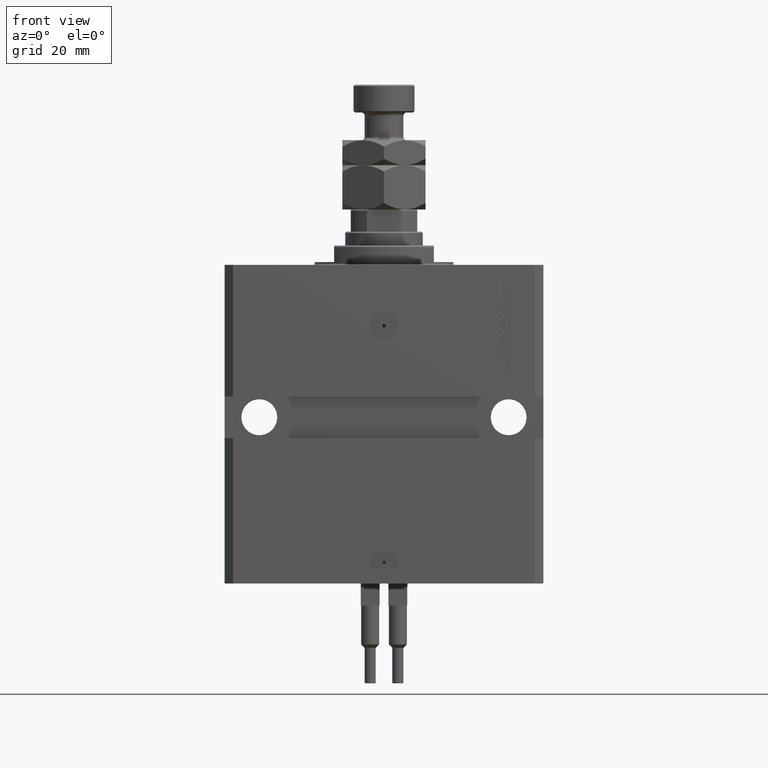
[diagram: clean part render]
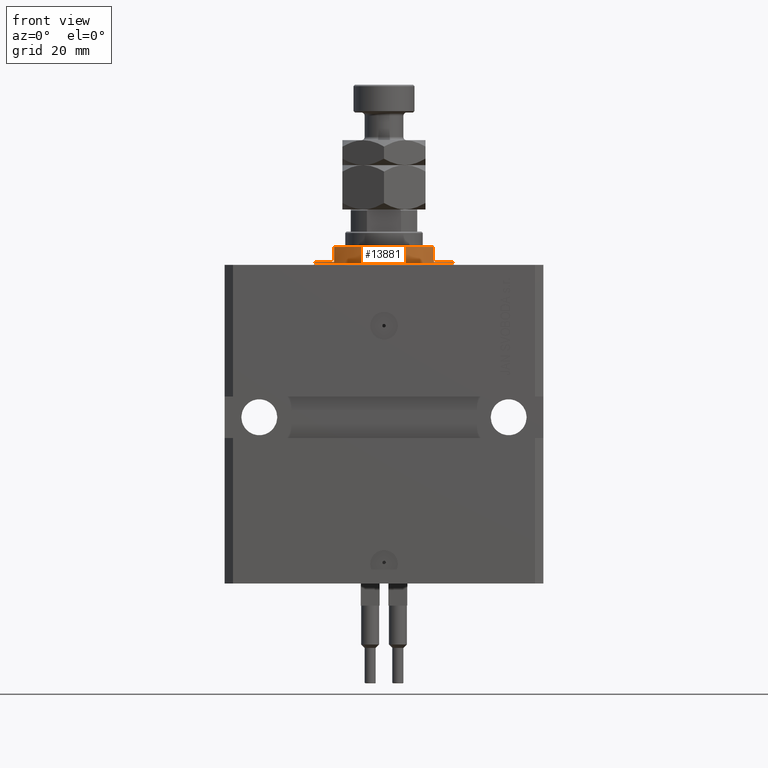
[diagram: same view with one face highlighted and labeled with its STEP entity id]
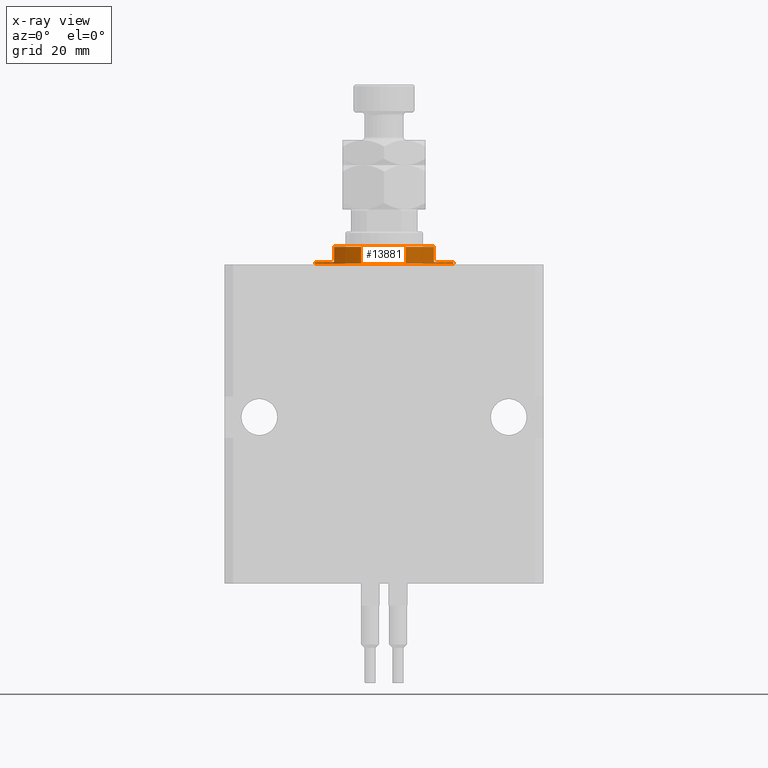
[diagram: x-ray of the same camera — body ghosted, the highlighted face saturated]
A machine part, front view. The second image highlights one B-rep face of the part: STEP entity #13881.
The next image is the same camera in x-ray: the body ghosted, the highlighted face saturated — about 0% of this face is hidden behind the body in this view.
In plain terms, the highlighted cylindrical surface (partial cylindrical patch) has radius 25 mm, axis along (0, 0, -1).
Its self-contained STEP definition (entity closure, byte-faithful):
#84 = CARTESIAN_POINT ( 'NONE',  ( -18.00000000000000000, -17.34935157289747920, -7.000000000000000000 ) ) ;
#197 = CARTESIAN_POINT ( 'NONE',  ( 25.00000000000000000, 0.000000000000000000, -0.4999999999999995559 ) ) ;
#1341 = EDGE_CURVE ( 'NONE', #43198, #43203, #47631, .T. ) ;
#1650 = ORIENTED_EDGE ( 'NONE', *, *, #32054, .T. ) ;
#3735 = CARTESIAN_POINT ( 'NONE',  ( -25.00000000000000000, 3.061616997868383043E-15, -7.000000000000000000 ) ) ;
#5025 = VECTOR ( 'NONE', #46753, 1000.000000000000000 ) ;
#5352 = CARTESIAN_POINT ( 'NONE',  ( -18.00000000000000000, -17.34935157289747920, -1.000000000000000000 ) ) ;
#5369 = DIRECTION ( 'NONE',  ( -1.000000000000000000, 0.000000000000000000, 0.000000000000000000 ) ) ;
#5533 = VECTOR ( 'NONE', #26323, 1000.000000000000000 ) ;
#8200 = LINE ( 'NONE', #84, #14816 ) ;
#10062 = VERTEX_POINT ( 'NONE', #49572 ) ;
#10351 = VECTOR ( 'NONE', #35617, 1000.000000000000000 ) ;
#11144 = CARTESIAN_POINT ( 'NONE',  ( 25.00000000000000000, 0.000000000000000000, -1.000000000000000000 ) ) ;
#11314 = AXIS2_PLACEMENT_3D ( 'NONE', #43238, #19475, #47690 ) ;
#11758 = AXIS2_PLACEMENT_3D ( 'NONE', #22097, #50054, #5369 ) ;
#12412 = ORIENTED_EDGE ( 'NONE', *, *, #27916, .T. ) ;
#13124 = ORIENTED_EDGE ( 'NONE', *, *, #30112, .T. ) ;
#13484 = ORIENTED_EDGE ( 'NONE', *, *, #1341, .F. ) ;
#13881 = ADVANCED_FACE ( 'NONE', ( #45816 ), #18379, .T. ) ;
#14211 = DIRECTION ( 'NONE',  ( -0.000000000000000000, -0.000000000000000000, 1.000000000000000000 ) ) ;
#14770 = VERTEX_POINT ( 'NONE', #197 ) ;
#14816 = VECTOR ( 'NONE', #40550, 1000.000000000000000 ) ;
#15717 = EDGE_LOOP ( 'NONE', ( #44823, #16103, #1650, #13124, #29835, #13484, #12412, #35097 ) ) ;
#15966 = DIRECTION ( 'NONE',  ( 0.000000000000000000, 0.000000000000000000, 1.000000000000000000 ) ) ;
#16103 = ORIENTED_EDGE ( 'NONE', *, *, #25016, .F. ) ;
#17218 = CIRCLE ( 'NONE', #51474, 25.00000000000000000 ) ;
#17744 = DIRECTION ( 'NONE',  ( 1.000000000000000000, 0.000000000000000000, 0.000000000000000000 ) ) ;
#18379 = CYLINDRICAL_SURFACE ( 'NONE', #51081, 25.00000000000000000 ) ;
#19475 = DIRECTION ( 'NONE',  ( 0.000000000000000000, 0.000000000000000000, -1.000000000000000000 ) ) ;
#21830 = EDGE_CURVE ( 'NONE', #50108, #24032, #28023, .T. ) ;
#22037 = DIRECTION ( 'NONE',  ( 1.000000000000000000, 0.000000000000000000, 0.000000000000000000 ) ) ;
#22097 = CARTESIAN_POINT ( 'NONE',  ( 0.000000000000000000, 0.000000000000000000, -1.000000000000000000 ) ) ;
#22166 = DIRECTION ( 'NONE',  ( -0.000000000000000000, -0.000000000000000000, -1.000000000000000000 ) ) ;
#23511 = LINE ( 'NONE', #47800, #5025 ) ;
#24032 = VERTEX_POINT ( 'NONE', #34854 ) ;
#25016 = EDGE_CURVE ( 'NONE', #27383, #50108, #33812, .T. ) ;
#26323 = DIRECTION ( 'NONE',  ( -0.000000000000000000, -0.000000000000000000, 1.000000000000000000 ) ) ;
#27383 = VERTEX_POINT ( 'NONE', #5352 ) ;
#27916 = EDGE_CURVE ( 'NONE', #43198, #14770, #30496, .T. ) ;
#28023 = LINE ( 'NONE', #3735, #10351 ) ;
#29835 = ORIENTED_EDGE ( 'NONE', *, *, #49268, .F. ) ;
#29991 = CARTESIAN_POINT ( 'NONE',  ( 0.000000000000000000, 0.000000000000000000, -0.4999999999999995559 ) ) ;
#30112 = EDGE_CURVE ( 'NONE', #10062, #49537, #17218, .T. ) ;
#30496 = LINE ( 'NONE', #49854, #5533 ) ;
#32054 = EDGE_CURVE ( 'NONE', #27383, #10062, #8200, .T. ) ;
#33812 = CIRCLE ( 'NONE', #11314, 25.00000000000000000 ) ;
#34854 = CARTESIAN_POINT ( 'NONE',  ( -25.00000000000000000, 3.061616997868383043E-15, -0.4999999999999995559 ) ) ;
#35097 = ORIENTED_EDGE ( 'NONE', *, *, #35626, .T. ) ;
#35617 = DIRECTION ( 'NONE',  ( -0.000000000000000000, -0.000000000000000000, 1.000000000000000000 ) ) ;
#35626 = EDGE_CURVE ( 'NONE', #14770, #24032, #46611, .T. ) ;
#35793 = AXIS2_PLACEMENT_3D ( 'NONE', #29991, #22166, #17744 ) ;
#40550 = DIRECTION ( 'NONE',  ( 0.000000000000000000, 0.000000000000000000, -1.000000000000000000 ) ) ;
#41712 = CARTESIAN_POINT ( 'NONE',  ( 18.00000000000000000, -17.34935157289747920, -6.499999999999958256 ) ) ;
#42142 = CARTESIAN_POINT ( 'NONE',  ( 0.000000000000000000, 0.000000000000000000, -7.000000000000000000 ) ) ;
#42854 = DIRECTION ( 'NONE',  ( -1.000000000000000000, 0.000000000000000000, 0.000000000000000000 ) ) ;
#42996 = CARTESIAN_POINT ( 'NONE',  ( 18.00000000000000000, -17.34935157289747920, -1.000000000000000000 ) ) ;
#43198 = VERTEX_POINT ( 'NONE', #11144 ) ;
#43203 = VERTEX_POINT ( 'NONE', #42996 ) ;
#43238 = CARTESIAN_POINT ( 'NONE',  ( 0.000000000000000000, 0.000000000000000000, -1.000000000000000000 ) ) ;
#44823 = ORIENTED_EDGE ( 'NONE', *, *, #21830, .F. ) ;
#45816 = FACE_OUTER_BOUND ( 'NONE', #15717, .T. ) ;
#46611 = CIRCLE ( 'NONE', #35793, 25.00000000000000000 ) ;
#46753 = DIRECTION ( 'NONE',  ( 0.000000000000000000, 0.000000000000000000, -1.000000000000000000 ) ) ;
#47631 = CIRCLE ( 'NONE', #11758, 25.00000000000000000 ) ;
#47690 = DIRECTION ( 'NONE',  ( -1.000000000000000000, 0.000000000000000000, 0.000000000000000000 ) ) ;
#47800 = CARTESIAN_POINT ( 'NONE',  ( 18.00000000000000000, -17.34935157289747920, -7.000000000000000000 ) ) ;
#49268 = EDGE_CURVE ( 'NONE', #43203, #49537, #23511, .T. ) ;
#49537 = VERTEX_POINT ( 'NONE', #41712 ) ;
#49572 = CARTESIAN_POINT ( 'NONE',  ( -18.00000000000000000, -17.34935157289747920, -6.499999999999956479 ) ) ;
#49672 = CARTESIAN_POINT ( 'NONE',  ( 0.000000000000000000, 0.000000000000000000, -6.499999999999958256 ) ) ;
#49854 = CARTESIAN_POINT ( 'NONE',  ( 25.00000000000000000, 0.000000000000000000, -7.000000000000000000 ) ) ;
#50054 = DIRECTION ( 'NONE',  ( 0.000000000000000000, 0.000000000000000000, -1.000000000000000000 ) ) ;
#50108 = VERTEX_POINT ( 'NONE', #50801 ) ;
#50801 = CARTESIAN_POINT ( 'NONE',  ( -25.00000000000000000, 3.061616997868383043E-15, -1.000000000000000000 ) ) ;
#51081 = AXIS2_PLACEMENT_3D ( 'NONE', #42142, #14211, #22037 ) ;
#51474 = AXIS2_PLACEMENT_3D ( 'NONE', #49672, #15966, #42854 ) ;